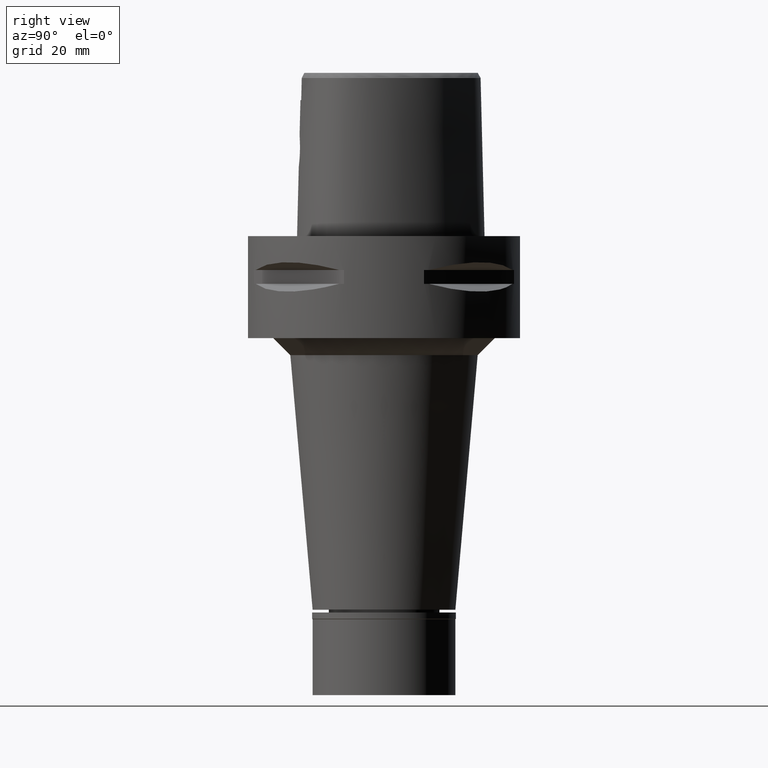
[diagram: clean part render]
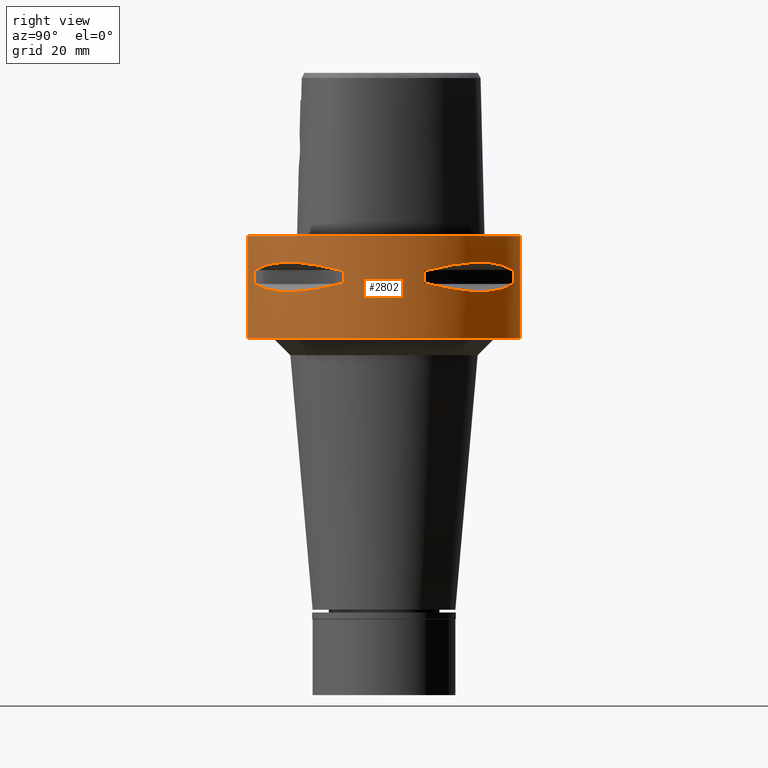
[diagram: same view with one face highlighted and labeled with its STEP entity id]
A machine part, right view. The second image highlights one B-rep face of the part: STEP entity #2802.
In plain terms, the highlighted cylindrical surface (partial cylindrical patch) has radius 40 mm, axis along (0, 0, -1).
Its self-contained STEP definition (entity closure, byte-faithful):
#20 = CARTESIAN_POINT ( 'NONE',  ( 30.34851826270024944, 26.21995747455423853, -16.33009976521772799 ) ) ;
#31 = DIRECTION ( 'NONE',  ( 0.0000000000000000000, 0.0000000000000000000, -1.000000000000000000 ) ) ;
#42 = CARTESIAN_POINT ( 'NONE',  ( 33.69065616467145929, -21.56243030661679327, -15.79309434609244001 ) ) ;
#44 = CARTESIAN_POINT ( 'NONE',  ( 0.0000000000000000000, -40.00000000000000000, 0.0000000000000000000 ) ) ;
#74 = CARTESIAN_POINT ( 'NONE',  ( 36.35358138589326416, 16.81132763100200123, -14.94059947015123058 ) ) ;
#104 = CARTESIAN_POINT ( 'NONE',  ( 35.41596287855380609, 18.83173199174708046, -8.619939612211814151 ) ) ;
#123 = CARTESIAN_POINT ( 'NONE',  ( 21.56243030661663695, 33.69065616467183588, -15.79309434609252705 ) ) ;
#133 = ORIENTED_EDGE ( 'NONE', *, *, #2099, .T. ) ;
#154 = CARTESIAN_POINT ( 'NONE',  ( 11.76033600280999991, -38.23211342708000160, -9.950000000000001066 ) ) ;
#232 = FACE_BOUND ( 'NONE', #2609, .T. ) ;
#234 = VERTEX_POINT ( 'NONE', #3968 ) ;
#245 = AXIS2_PLACEMENT_3D ( 'NONE', #604, #1775, #1391 ) ;
#274 = CARTESIAN_POINT ( 'NONE',  ( 18.83173199174709467, -35.41596287855377767, -8.619939612211814151 ) ) ;
#283 = ORIENTED_EDGE ( 'NONE', *, *, #4535, .F. ) ;
#312 = B_SPLINE_CURVE_WITH_KNOTS ( 'NONE', 3,
 ( #3643, #4748, #74, #486, #2400, #1170, #2748, #3993, #412, #1993, #772, #1972, #20, #3202, #4407, #823, #436, #2015, #1296, #903, #123, #2545, #2927, #3373, #2977, #4920 ),
 .UNSPECIFIED., .F., .F.,
 ( 4, 1, 1, 1, 1, 1, 1, 2, 2, 2, 1, 1, 1, 1, 1, 1, 2, 2, 4 ),
 ( 0.0000000000000000000, 0.1249999999999938660, 0.1874999999999906741, 0.2187499999999889255, 0.2343749999999879541, 0.2421874999999872879, 0.2460937499999869549, 0.2480468749999869271, 0.2499999999999869271, 0.4999999999999968914, 0.6250000000000018874, 0.6875000000000044409, 0.7187500000000057732, 0.7343750000000064393, 0.7421875000000067724, 0.7460937500000065503, 0.7480468750000062172, 0.7500000000000058842, 1.000000000000000000 ),
 .UNSPECIFIED. ) ;
#314 = EDGE_CURVE ( 'NONE', #2352, #2163, #312, .T. ) ;
#382 = DIRECTION ( 'NONE',  ( 0.2940084000702865574, -0.9558028356769561196, 0.0000000000000000000 ) ) ;
#401 = VERTEX_POINT ( 'NONE', #607 ) ;
#412 = CARTESIAN_POINT ( 'NONE',  ( 33.79139713908593023, 21.40429668490282467, -15.76966389594722528 ) ) ;
#414 = EDGE_CURVE ( 'NONE', #234, #4496, #4193, .T. ) ;
#417 = CARTESIAN_POINT ( 'NONE',  ( 13.23717311056000057, 37.74622163926999718, -9.950000000002001244 ) ) ;
#420 = VECTOR ( 'NONE', #1010, 1000.000000000000000 ) ;
#432 = CARTESIAN_POINT ( 'NONE',  ( 21.44484052678270913, -33.76566745675011560, -15.77571175125575031 ) ) ;
#436 = CARTESIAN_POINT ( 'NONE',  ( 22.55421454656803704, 33.03835700910301654, -15.93168855142971374 ) ) ;
#440 = CARTESIAN_POINT ( 'NONE',  ( 32.22577213857955059, 23.88355431037101795, -7.859897272571251037 ) ) ;
#449 = EDGE_LOOP ( 'NONE', ( #4668, #2168, #675, #4469, #1898, #283, #1675, #2584 ) ) ;
#486 = CARTESIAN_POINT ( 'NONE',  ( 35.11589783530617126, 19.18269457493275354, -15.40342377741110091 ) ) ;
#506 = DIRECTION ( 'NONE',  ( 0.0000000000000000000, 0.0000000000000000000, -1.000000000000000000 ) ) ;
#530 = DIRECTION ( 'NONE',  ( 0.9436555409818374596, 0.3309293277639132058, 0.0000000000000000000 ) ) ;
#575 = VERTEX_POINT ( 'NONE', #2917 ) ;
#588 = CARTESIAN_POINT ( 'NONE',  ( 36.74070924257181758, -16.10442380448733957, -9.189948522868267133 ) ) ;
#604 = CARTESIAN_POINT ( 'NONE',  ( 0.0000000000000000000, 1.302718032592999872E-14, -9.950000000000001066 ) ) ;
#607 = CARTESIAN_POINT ( 'NONE',  ( 11.76033600280999991, -38.23211342708000160, -14.05000000000000071 ) ) ;
#616 = EDGE_CURVE ( 'NONE', #2629, #2938, #4522, .T. ) ;
#642 = CARTESIAN_POINT ( 'NONE',  ( 37.74622163926999718, -13.23717311056000057, -9.950000000002001244 ) ) ;
#675 = ORIENTED_EDGE ( 'NONE', *, *, #908, .T. ) ;
#747 = CIRCLE ( 'NONE', #3825, 39.99999999999997868 ) ;
#765 = EDGE_CURVE ( 'NONE', #4623, #4808, #4816, .T. ) ;
#772 = CARTESIAN_POINT ( 'NONE',  ( 33.75216276490046852, 21.46607685731544990, -15.77886817953061005 ) ) ;
#775 = B_SPLINE_CURVE_WITH_KNOTS ( 'NONE', 3,
 ( #2956, #5051, #274, #1861, #986, #4174, #1420, #4198, #588, #3458 ),
 .UNSPECIFIED., .F., .F.,
 ( 4, 2, 2, 2, 4 ),
 ( 0.0000000000000000000, 0.2500000000000000000, 0.5000000000000000000, 0.7500000000000000000, 1.000000000000000000 ),
 .UNSPECIFIED. ) ;
#794 = CARTESIAN_POINT ( 'NONE',  ( 0.0000000000000000000, -40.00000000000000000, -30.00000000000000000 ) ) ;
#795 = EDGE_CURVE ( 'NONE', #4808, #1922, #914, .T. ) ;
#806 = CARTESIAN_POINT ( 'NONE',  ( 26.20795918965211158, 30.36058330527170668, -7.669863843587148011 ) ) ;
#823 = CARTESIAN_POINT ( 'NONE',  ( 23.60097336453497618, 32.30995221951452834, -16.06165603927751917 ) ) ;
#876 = DIRECTION ( 'NONE',  ( 0.0000000000000000000, 0.0000000000000000000, 1.000000000000000000 ) ) ;
#888 = CARTESIAN_POINT ( 'NONE',  ( 0.0000000000000000000, 1.302718032592999872E-14, 0.0000000000000000000 ) ) ;
#889 = AXIS2_PLACEMENT_3D ( 'NONE', #4460, #876, #2477 ) ;
#903 = CARTESIAN_POINT ( 'NONE',  ( 21.62017158009700069, 33.65365962422837498, -15.80156334789098160 ) ) ;
#908 = EDGE_CURVE ( 'NONE', #234, #3915, #4232, .T. ) ;
#914 = LINE ( 'NONE', #2893, #3724 ) ;
#953 = CARTESIAN_POINT ( 'NONE',  ( 38.23211342708000160, -11.76033600280999991, -14.05000000000000071 ) ) ;
#962 = AXIS2_PLACEMENT_3D ( 'NONE', #4207, #1795, #2217 ) ;
#986 = CARTESIAN_POINT ( 'NONE',  ( 26.20795918965211158, -30.36058330527167115, -7.669882118573493557 ) ) ;
#1010 = DIRECTION ( 'NONE',  ( 0.0000000000000000000, 0.0000000000000000000, -1.000000000000000000 ) ) ;
#1016 = DIRECTION ( 'NONE',  ( 0.0000000000000000000, 0.0000000000000000000, 1.000000000000000000 ) ) ;
#1040 = CARTESIAN_POINT ( 'NONE',  ( 11.76033600280999991, 38.23211342708000160, -14.05000000000000071 ) ) ;
#1058 = CARTESIAN_POINT ( 'NONE',  ( 13.23717311056000057, 37.74622163926999718, -9.950000000002001244 ) ) ;
#1140 = CARTESIAN_POINT ( 'NONE',  ( 33.39247868354526361, -22.02254759438564591, -15.85920599531236164 ) ) ;
#1155 = EDGE_CURVE ( 'NONE', #1334, #401, #1807, .T. ) ;
#1157 = CARTESIAN_POINT ( 'NONE',  ( 11.76033600280999991, 38.23211342708000160, -9.950000000000001066 ) ) ;
#1163 = CARTESIAN_POINT ( 'NONE',  ( 13.23717311056000057, -37.74622163926999718, -9.950000000002001244 ) ) ;
#1170 = CARTESIAN_POINT ( 'NONE',  ( 34.09685321779860345, 20.91613153242115075, -15.69507322892878953 ) ) ;
#1216 = CARTESIAN_POINT ( 'NONE',  ( 20.34261333234551472, -34.44518065740425783, -15.60313948593864275 ) ) ;
#1257 = ORIENTED_EDGE ( 'NONE', *, *, #2256, .F. ) ;
#1276 = CARTESIAN_POINT ( 'NONE',  ( 18.83182902076451626, 35.41591128513827869, -8.619912199391258412 ) ) ;
#1294 = CARTESIAN_POINT ( 'NONE',  ( 0.0000000000000000000, 40.00000000000000000, 0.0000000000000000000 ) ) ;
#1296 = CARTESIAN_POINT ( 'NONE',  ( 21.75464223249287699, 33.56701934068274795, -15.82109001420633732 ) ) ;
#1310 = DIRECTION ( 'NONE',  ( 0.0000000000000000000, 0.0000000000000000000, -1.000000000000000000 ) ) ;
#1316 = CARTESIAN_POINT ( 'NONE',  ( 11.76033600280999991, 38.23211342708000160, -14.05000000000000071 ) ) ;
#1334 = VERTEX_POINT ( 'NONE', #3575 ) ;
#1387 = VERTEX_POINT ( 'NONE', #4048 ) ;
#1391 = DIRECTION ( 'NONE',  ( 0.9558028356769561196, 0.2940084000702865574, 0.0000000000000000000 ) ) ;
#1420 = CARTESIAN_POINT ( 'NONE',  ( 32.22570670470193477, -23.88364259920623667, -7.859869859750701515 ) ) ;
#1523 = LINE ( 'NONE', #154, #420 ) ;
#1540 = CARTESIAN_POINT ( 'NONE',  ( 38.23211342708000160, -11.76033600280999991, -9.950000000000001066 ) ) ;
#1564 = EDGE_CURVE ( 'NONE', #4963, #3580, #2293, .T. ) ;
#1578 = CARTESIAN_POINT ( 'NONE',  ( 33.65365962422774260, -21.62017158009728135, -15.80156334789082528 ) ) ;
#1628 = CARTESIAN_POINT ( 'NONE',  ( 37.74622163926999718, -13.23717311056000057, -14.05000000000000071 ) ) ;
#1634 = DIRECTION ( 'NONE',  ( 0.9436555409818374596, -0.3309293277639132058, 0.0000000000000000000 ) ) ;
#1661 = CIRCLE ( 'NONE', #245, 39.99999999999999289 ) ;
#1675 = ORIENTED_EDGE ( 'NONE', *, *, #3996, .T. ) ;
#1688 = CARTESIAN_POINT ( 'NONE',  ( 30.36058330527161075, 26.20795918965221460, -7.669882118573493557 ) ) ;
#1722 = DIRECTION ( 'NONE',  ( 0.0000000000000000000, 1.000000000000000000, 0.0000000000000000000 ) ) ;
#1724 = AXIS2_PLACEMENT_3D ( 'NONE', #3602, #31, #2836 ) ;
#1768 = FACE_BOUND ( 'NONE', #449, .T. ) ;
#1775 = DIRECTION ( 'NONE',  ( 0.0000000000000000000, 0.0000000000000000000, 1.000000000000000000 ) ) ;
#1787 = CIRCLE ( 'NONE', #4718, 39.99999999999997868 ) ;
#1795 = DIRECTION ( 'NONE',  ( 0.0000000000000000000, 0.0000000000000000000, -1.000000000000000000 ) ) ;
#1807 = CIRCLE ( 'NONE', #4738, 39.99999999999997868 ) ;
#1845 = ORIENTED_EDGE ( 'NONE', *, *, #1564, .T. ) ;
#1861 = CARTESIAN_POINT ( 'NONE',  ( 23.88355431037091137, -32.22577213857957901, -7.859897272571251037 ) ) ;
#1898 = ORIENTED_EDGE ( 'NONE', *, *, #1155, .T. ) ;
#1922 = VERTEX_POINT ( 'NONE', #794 ) ;
#1969 = CARTESIAN_POINT ( 'NONE',  ( 23.95303639238279914, -32.16767032370825063, -16.14729882780506287 ) ) ;
#1972 = CARTESIAN_POINT ( 'NONE',  ( 32.16767032371209467, 23.95303639237203797, -16.14729882780224202 ) ) ;
#1993 = CARTESIAN_POINT ( 'NONE',  ( 33.76566745675005166, 21.44484052678287256, -15.77571175125579828 ) ) ;
#2012 = CARTESIAN_POINT ( 'NONE',  ( 26.21995747456629644, -30.34851826269509800, -16.33009976522055240 ) ) ;
#2015 = CARTESIAN_POINT ( 'NONE',  ( 22.02254759438460141, 33.39247868354773630, -15.85920599531294783 ) ) ;
#2086 = EDGE_CURVE ( 'NONE', #3500, #4496, #4953, .T. ) ;
#2095 = DIRECTION ( 'NONE',  ( 0.2940084000702865574, 0.9558028356769561196, 0.0000000000000000000 ) ) ;
#2099 = EDGE_CURVE ( 'NONE', #1922, #1387, #3138, .T. ) ;
#2150 = DIRECTION ( 'NONE',  ( 0.0000000000000000000, 0.0000000000000000000, -1.000000000000000000 ) ) ;
#2163 = VERTEX_POINT ( 'NONE', #3937 ) ;
#2168 = ORIENTED_EDGE ( 'NONE', *, *, #414, .F. ) ;
#2217 = DIRECTION ( 'NONE',  ( 0.0000000000000000000, -1.000000000000000000, 0.0000000000000000000 ) ) ;
#2220 = ORIENTED_EDGE ( 'NONE', *, *, #2929, .F. ) ;
#2256 = EDGE_CURVE ( 'NONE', #4623, #1387, #3274, .T. ) ;
#2293 = B_SPLINE_CURVE_WITH_KNOTS ( 'NONE', 3,
 ( #3311, #4078, #104, #440, #1688, #806, #2886, #1276, #3284, #417 ),
 .UNSPECIFIED., .F., .F.,
 ( 4, 2, 2, 2, 4 ),
 ( 0.0000000000000000000, 0.2500000000000000000, 0.5000000000000000000, 0.7500000000000000000, 1.000000000000000000 ),
 .UNSPECIFIED. ) ;
#2294 = VERTEX_POINT ( 'NONE', #3299 ) ;
#2305 = VECTOR ( 'NONE', #4146, 1000.000000000000000 ) ;
#2352 = VERTEX_POINT ( 'NONE', #3227 ) ;
#2400 = CARTESIAN_POINT ( 'NONE',  ( 34.44518065740276569, 20.34261333234974245, -15.60313948593977074 ) ) ;
#2421 = CARTESIAN_POINT ( 'NONE',  ( 20.91613153241887701, -34.09685321779939926, -15.69507322892818557 ) ) ;
#2464 = VECTOR ( 'NONE', #4843, 1000.000000000000000 ) ;
#2477 = DIRECTION ( 'NONE',  ( 0.0000000000000000000, -1.000000000000000000, 0.0000000000000000000 ) ) ;
#2502 = CIRCLE ( 'NONE', #4338, 39.99999999999999289 ) ;
#2515 = DIRECTION ( 'NONE',  ( 0.0000000000000000000, 0.0000000000000000000, 1.000000000000000000 ) ) ;
#2525 = CARTESIAN_POINT ( 'NONE',  ( 38.23211342708000160, 11.76033600280999991, -14.05000000000000071 ) ) ;
#2545 = CARTESIAN_POINT ( 'NONE',  ( 21.52391145898924663, 33.71529052282357952, -15.78742602700012831 ) ) ;
#2584 = ORIENTED_EDGE ( 'NONE', *, *, #3630, .T. ) ;
#2609 = EDGE_LOOP ( 'NONE', ( #5149, #4209, #3535, #4181, #3193, #2220, #3899, #1845 ) ) ;
#2629 = VERTEX_POINT ( 'NONE', #1040 ) ;
#2723 = CARTESIAN_POINT ( 'NONE',  ( 33.71529052282339478, -21.52391145898932834, -15.78742602700008568 ) ) ;
#2748 = CARTESIAN_POINT ( 'NONE',  ( 33.91944728533341191, 21.20128033779756294, -15.73905907260447101 ) ) ;
#2771 = CARTESIAN_POINT ( 'NONE',  ( 33.72697758561029246, -21.50560509406250276, -15.78472370821739901 ) ) ;
#2796 = CARTESIAN_POINT ( 'NONE',  ( 0.0000000000000000000, 1.302718032592999872E-14, -9.950000000000001066 ) ) ;
#2802 = ADVANCED_FACE ( 'NONE', ( #4135, #1768, #232 ), #4956, .T. ) ;
#2820 = CARTESIAN_POINT ( 'NONE',  ( 13.23717311056000057, -37.74622163926999718, -14.05000000000000071 ) ) ;
#2836 = DIRECTION ( 'NONE',  ( 0.9558028356769561196, -0.2940084000702865574, 0.0000000000000000000 ) ) ;
#2854 = DIRECTION ( 'NONE',  ( 0.0000000000000000000, 0.0000000000000000000, 1.000000000000000000 ) ) ;
#2858 = EDGE_CURVE ( 'NONE', #3580, #2938, #1787, .T. ) ;
#2886 = CARTESIAN_POINT ( 'NONE',  ( 23.88364259920617272, 32.22570670470200582, -7.859869859750701515 ) ) ;
#2893 = CARTESIAN_POINT ( 'NONE',  ( 0.0000000000000000000, -40.00000000000000000, 0.0000000000000000000 ) ) ;
#2913 = DIRECTION ( 'NONE',  ( 0.0000000000000000000, 0.0000000000000000000, -1.000000000000000000 ) ) ;
#2917 = CARTESIAN_POINT ( 'NONE',  ( 38.23211342708000160, 11.76033600280999991, -9.950000000000001066 ) ) ;
#2927 = CARTESIAN_POINT ( 'NONE',  ( 21.50560509406274434, 33.72697758561020720, -15.78472370821746118 ) ) ;
#2929 = EDGE_CURVE ( 'NONE', #575, #3135, #3443, .T. ) ;
#2938 = VERTEX_POINT ( 'NONE', #1157 ) ;
#2956 = CARTESIAN_POINT ( 'NONE',  ( 13.23717311056000057, -37.74622163926999718, -9.950000000002001244 ) ) ;
#2977 = CARTESIAN_POINT ( 'NONE',  ( 16.14402792110260521, 36.72682052670324993, -14.82054974552761095 ) ) ;
#3026 = CARTESIAN_POINT ( 'NONE',  ( 37.74622163926999718, 13.23717311056000057, -9.950000000002001244 ) ) ;
#3061 = AXIS2_PLACEMENT_3D ( 'NONE', #2796, #4403, #382 ) ;
#3070 = ORIENTED_EDGE ( 'NONE', *, *, #795, .T. ) ;
#3102 = DIRECTION ( 'NONE',  ( 0.0000000000000000000, 0.0000000000000000000, -1.000000000000000000 ) ) ;
#3117 = CARTESIAN_POINT ( 'NONE',  ( 33.03835700909839090, -22.55421454657001235, -15.93168855142863904 ) ) ;
#3135 = VERTEX_POINT ( 'NONE', #2525 ) ;
#3138 = CIRCLE ( 'NONE', #889, 40.00000000000000000 ) ;
#3146 = CARTESIAN_POINT ( 'NONE',  ( 19.18269457492549179, -35.11589783530871500, -15.40342377740917001 ) ) ;
#3193 = ORIENTED_EDGE ( 'NONE', *, *, #4111, .T. ) ;
#3202 = CARTESIAN_POINT ( 'NONE',  ( 27.25214773984120598, 29.31642813391417590, -16.33014064577303515 ) ) ;
#3223 = VECTOR ( 'NONE', #3102, 1000.000000000000000 ) ;
#3227 = CARTESIAN_POINT ( 'NONE',  ( 37.74622163926999718, 13.23717311056000057, -14.05000000000000071 ) ) ;
#3274 = LINE ( 'NONE', #1294, #2464 ) ;
#3284 = CARTESIAN_POINT ( 'NONE',  ( 16.10442380448735733, 36.74070924257181758, -9.189948522868267133 ) ) ;
#3299 = CARTESIAN_POINT ( 'NONE',  ( 11.76033600280999991, -38.23211342708000160, -9.950000000000001066 ) ) ;
#3311 = CARTESIAN_POINT ( 'NONE',  ( 37.74622163926999718, 13.23717311056000057, -9.950000000002001244 ) ) ;
#3373 = CARTESIAN_POINT ( 'NONE',  ( 18.89342208871625317, 35.39137327286631063, -15.39779115588368619 ) ) ;
#3443 = LINE ( 'NONE', #4258, #3223 ) ;
#3445 = EDGE_LOOP ( 'NONE', ( #3661, #3070, #133, #1257 ) ) ;
#3458 = CARTESIAN_POINT ( 'NONE',  ( 37.74622163926999718, -13.23717311056000057, -9.950000000002001244 ) ) ;
#3460 = AXIS2_PLACEMENT_3D ( 'NONE', #3647, #2854, #1634 ) ;
#3500 = VERTEX_POINT ( 'NONE', #642 ) ;
#3535 = ORIENTED_EDGE ( 'NONE', *, *, #4279, .T. ) ;
#3547 = DIRECTION ( 'NONE',  ( 0.0000000000000000000, 0.0000000000000000000, -1.000000000000000000 ) ) ;
#3566 = CARTESIAN_POINT ( 'NONE',  ( 29.31642813390815050, -27.25214773984377459, -16.33014064577162472 ) ) ;
#3575 = CARTESIAN_POINT ( 'NONE',  ( 13.23717311056000057, -37.74622163926999718, -14.05000000000000071 ) ) ;
#3580 = VERTEX_POINT ( 'NONE', #1058 ) ;
#3602 = CARTESIAN_POINT ( 'NONE',  ( 0.0000000000000000000, 1.302718032592999872E-14, -14.05000000000000071 ) ) ;
#3630 = EDGE_CURVE ( 'NONE', #5059, #3500, #775, .T. ) ;
#3643 = CARTESIAN_POINT ( 'NONE',  ( 37.74622163926999718, 13.23717311056000057, -14.05000000000000071 ) ) ;
#3647 = CARTESIAN_POINT ( 'NONE',  ( 0.0000000000000000000, 1.302718032592999872E-14, -9.950000000000001066 ) ) ;
#3661 = ORIENTED_EDGE ( 'NONE', *, *, #765, .T. ) ;
#3689 = CARTESIAN_POINT ( 'NONE',  ( 0.0000000000000000000, 1.302718032592999872E-14, -14.05000000000000071 ) ) ;
#3724 = VECTOR ( 'NONE', #2913, 1000.000000000000000 ) ;
#3825 = AXIS2_PLACEMENT_3D ( 'NONE', #4819, #2150, #530 ) ;
#3854 = DIRECTION ( 'NONE',  ( 0.3309293277639132058, -0.9436555409818374596, 0.0000000000000000000 ) ) ;
#3899 = ORIENTED_EDGE ( 'NONE', *, *, #4303, .T. ) ;
#3915 = VERTEX_POINT ( 'NONE', #4515 ) ;
#3936 = CARTESIAN_POINT ( 'NONE',  ( 32.30995221950663421, -23.60097336453835837, -16.06165603927566821 ) ) ;
#3937 = CARTESIAN_POINT ( 'NONE',  ( 13.23717311056000057, 37.74622163926999718, -14.05000000000000071 ) ) ;
#3968 = CARTESIAN_POINT ( 'NONE',  ( 38.23211342708000160, -11.76033600280999991, -14.05000000000000071 ) ) ;
#3989 = CARTESIAN_POINT ( 'NONE',  ( 36.72682052669194519, -16.14402792113480345, -14.82054974553614635 ) ) ;
#3993 = CARTESIAN_POINT ( 'NONE',  ( 33.82993376593505275, 21.34345216682098112, -15.76055673748761166 ) ) ;
#3996 = EDGE_CURVE ( 'NONE', #2294, #5059, #4157, .T. ) ;
#4011 = CARTESIAN_POINT ( 'NONE',  ( 21.40429668490248005, -33.79139713908606524, -15.76966389594713647 ) ) ;
#4037 = CARTESIAN_POINT ( 'NONE',  ( 21.34345216682037716, -33.82993376593525170, -15.76055673748744468 ) ) ;
#4048 = CARTESIAN_POINT ( 'NONE',  ( 0.0000000000000000000, 40.00000000000000000, -30.00000000000000000 ) ) ;
#4078 = CARTESIAN_POINT ( 'NONE',  ( 36.74073341982096252, 16.10435486228974611, -9.189966798081966814 ) ) ;
#4090 = EDGE_CURVE ( 'NONE', #1334, #3915, #4264, .T. ) ;
#4111 = EDGE_CURVE ( 'NONE', #2352, #3135, #747, .T. ) ;
#4135 = FACE_OUTER_BOUND ( 'NONE', #3445, .T. ) ;
#4146 = DIRECTION ( 'NONE',  ( 0.0000000000000000000, 0.0000000000000000000, 1.000000000000000000 ) ) ;
#4157 = CIRCLE ( 'NONE', #3061, 39.99999999999999289 ) ;
#4174 = CARTESIAN_POINT ( 'NONE',  ( 30.36058330527161075, -26.20795918965218618, -7.669863843587148011 ) ) ;
#4181 = ORIENTED_EDGE ( 'NONE', *, *, #314, .F. ) ;
#4193 = LINE ( 'NONE', #953, #2305 ) ;
#4198 = CARTESIAN_POINT ( 'NONE',  ( 35.41591128513823605, -18.83182902076454113, -8.619912199391258412 ) ) ;
#4207 = CARTESIAN_POINT ( 'NONE',  ( 0.0000000000000000000, 1.302718032592999872E-14, 6.375000000000000000 ) ) ;
#4209 = ORIENTED_EDGE ( 'NONE', *, *, #616, .F. ) ;
#4232 = CIRCLE ( 'NONE', #1724, 39.99999999999999289 ) ;
#4258 = CARTESIAN_POINT ( 'NONE',  ( 38.23211342708000160, 11.76033600280999991, -9.950000000000001066 ) ) ;
#4264 = B_SPLINE_CURVE_WITH_KNOTS ( 'NONE', 3,
 ( #2820, #4428, #4744, #3146, #1216, #2421, #5103, #4037, #4011, #432, #4714, #1969, #2012, #3566, #5159, #3936, #3117, #1140, #4354, #1578, #42, #2723, #2771, #4768, #3989, #1628 ),
 .UNSPECIFIED., .F., .F.,
 ( 4, 1, 1, 1, 1, 1, 1, 2, 2, 2, 1, 1, 1, 1, 1, 1, 2, 2, 4 ),
 ( 0.0000000000000000000, 0.1250000000000018319, 0.1875000000000027478, 0.2187500000000032196, 0.2343750000000035805, 0.2421875000000038025, 0.2460937500000040523, 0.2480468750000043576, 0.2500000000000046629, 0.5000000000000000000, 0.6249999999999975575, 0.6874999999999964473, 0.7187499999999961142, 0.7343749999999960032, 0.7421874999999960032, 0.7460937499999957812, 0.7480468749999958922, 0.7499999999999958922, 1.000000000000000000 ),
 .UNSPECIFIED. ) ;
#4279 = EDGE_CURVE ( 'NONE', #2629, #2163, #2502, .T. ) ;
#4303 = EDGE_CURVE ( 'NONE', #575, #4963, #1661, .T. ) ;
#4338 = AXIS2_PLACEMENT_3D ( 'NONE', #3689, #506, #2095 ) ;
#4354 = CARTESIAN_POINT ( 'NONE',  ( 33.56701934068144766, -21.75464223249341345, -15.82109001420603533 ) ) ;
#4403 = DIRECTION ( 'NONE',  ( 0.0000000000000000000, 0.0000000000000000000, 1.000000000000000000 ) ) ;
#4407 = CARTESIAN_POINT ( 'NONE',  ( 25.62819065486898396, 30.77249687754148866, -16.26160051743016055 ) ) ;
#4428 = CARTESIAN_POINT ( 'NONE',  ( 14.69039122917563844, -37.23659447745037454, -14.43521939500837981 ) ) ;
#4460 = CARTESIAN_POINT ( 'NONE',  ( 0.0000000000000000000, 1.302718032592999872E-14, -30.00000000000000000 ) ) ;
#4469 = ORIENTED_EDGE ( 'NONE', *, *, #4090, .F. ) ;
#4496 = VERTEX_POINT ( 'NONE', #1540 ) ;
#4515 = CARTESIAN_POINT ( 'NONE',  ( 37.74622163926999718, -13.23717311056000057, -14.05000000000000071 ) ) ;
#4522 = LINE ( 'NONE', #1316, #5057 ) ;
#4535 = EDGE_CURVE ( 'NONE', #2294, #401, #1523, .T. ) ;
#4567 = AXIS2_PLACEMENT_3D ( 'NONE', #888, #1310, #1722 ) ;
#4569 = CARTESIAN_POINT ( 'NONE',  ( 0.0000000000000000000, 40.00000000000000000, 0.0000000000000000000 ) ) ;
#4623 = VERTEX_POINT ( 'NONE', #4569 ) ;
#4668 = ORIENTED_EDGE ( 'NONE', *, *, #2086, .T. ) ;
#4714 = CARTESIAN_POINT ( 'NONE',  ( 21.46607685731536819, -33.75216276490051825, -15.77886817953059051 ) ) ;
#4718 = AXIS2_PLACEMENT_3D ( 'NONE', #4983, #1016, #5066 ) ;
#4738 = AXIS2_PLACEMENT_3D ( 'NONE', #5085, #3547, #3854 ) ;
#4744 = CARTESIAN_POINT ( 'NONE',  ( 16.81132763099230587, -36.35358138589664634, -14.94059947014864775 ) ) ;
#4748 = CARTESIAN_POINT ( 'NONE',  ( 37.23659447744844897, 14.69039122918117357, -14.43521939500984885 ) ) ;
#4768 = CARTESIAN_POINT ( 'NONE',  ( 35.39137327285502010, -18.89342208874845142, -15.39779115589221625 ) ) ;
#4808 = VERTEX_POINT ( 'NONE', #44 ) ;
#4816 = CIRCLE ( 'NONE', #4567, 40.00000000000000000 ) ;
#4819 = CARTESIAN_POINT ( 'NONE',  ( 0.0000000000000000000, 1.302718032592999872E-14, -14.05000000000000071 ) ) ;
#4843 = DIRECTION ( 'NONE',  ( 0.0000000000000000000, 0.0000000000000000000, -1.000000000000000000 ) ) ;
#4920 = CARTESIAN_POINT ( 'NONE',  ( 13.23717311056000057, 37.74622163926999718, -14.05000000000000071 ) ) ;
#4953 = CIRCLE ( 'NONE', #3460, 39.99999999999997868 ) ;
#4956 = CYLINDRICAL_SURFACE ( 'NONE', #962, 40.00000000000000000 ) ;
#4963 = VERTEX_POINT ( 'NONE', #3026 ) ;
#4983 = CARTESIAN_POINT ( 'NONE',  ( 0.0000000000000000000, 1.302718032592999872E-14, -9.950000000000001066 ) ) ;
#5051 = CARTESIAN_POINT ( 'NONE',  ( 16.10435486228985980, -36.74073341982089147, -9.189966798081966814 ) ) ;
#5057 = VECTOR ( 'NONE', #2515, 1000.000000000000000 ) ;
#5059 = VERTEX_POINT ( 'NONE', #1163 ) ;
#5066 = DIRECTION ( 'NONE',  ( 0.3309293277639132058, 0.9436555409818374596, 0.0000000000000000000 ) ) ;
#5085 = CARTESIAN_POINT ( 'NONE',  ( 0.0000000000000000000, 1.302718032592999872E-14, -14.05000000000000071 ) ) ;
#5103 = CARTESIAN_POINT ( 'NONE',  ( 21.20128033779640830, -33.91944728533381692, -15.73905907260415837 ) ) ;
#5149 = ORIENTED_EDGE ( 'NONE', *, *, #2858, .T. ) ;
#5159 = CARTESIAN_POINT ( 'NONE',  ( 30.77249687753092289, -25.62819065487347814, -16.26160051742767365 ) ) ;